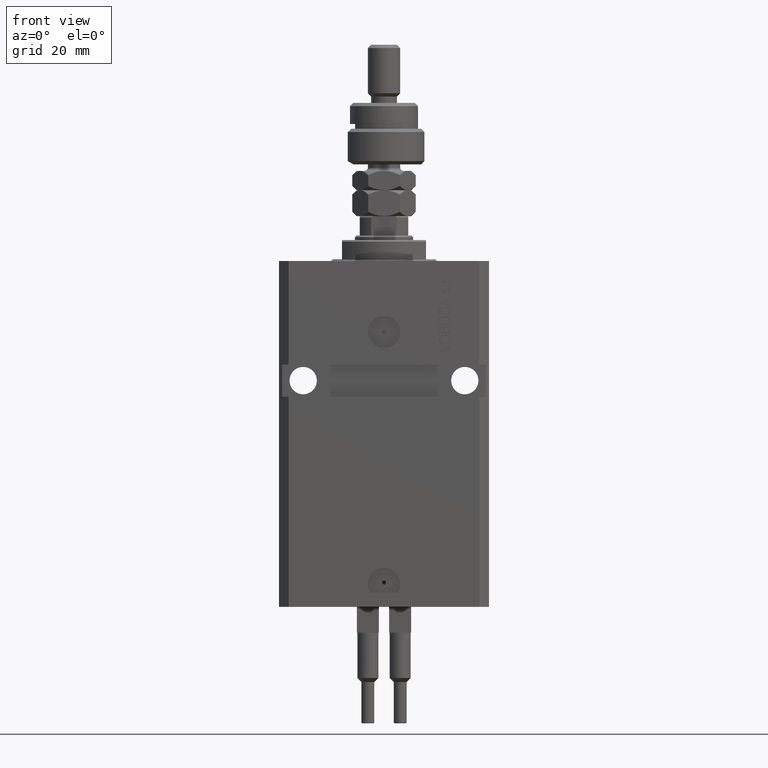
[diagram: clean part render]
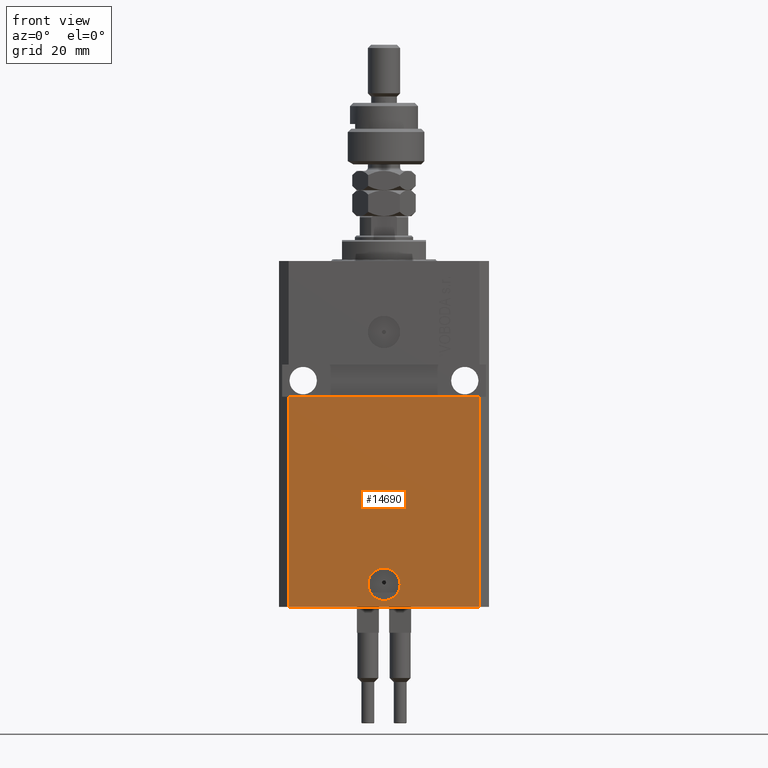
[diagram: same view with one face highlighted and labeled with its STEP entity id]
A machine part, front view. The second image highlights one B-rep face of the part: STEP entity #14690.
In plain terms, the highlighted planar face has unit normal (0, -1, 0).
Its self-contained STEP definition (entity closure, byte-faithful):
#1078 = CARTESIAN_POINT ( 'NONE',  ( -29.49999999999650413, -22.49999999999949907, -107.0000000000000000 ) ) ;
#3313 = DIRECTION ( 'NONE',  ( 0.000000000000000000, 0.000000000000000000, 1.000000000000000000 ) ) ;
#3344 = DIRECTION ( 'NONE',  ( 1.000000000000000000, 0.000000000000000000, 0.000000000000000000 ) ) ;
#4677 = CARTESIAN_POINT ( 'NONE',  ( -29.49999999999650413, -22.49999999999949907, -107.0000000000000000 ) ) ;
#4964 = PLANE ( 'NONE',  #43821 ) ;
#5320 = ORIENTED_EDGE ( 'NONE', *, *, #10480, .F. ) ;
#5917 = ORIENTED_EDGE ( 'NONE', *, *, #31678, .F. ) ;
#7284 = LINE ( 'NONE', #19218, #27377 ) ;
#8120 = VECTOR ( 'NONE', #22317, 1000.000000000000000 ) ;
#8846 = FACE_OUTER_BOUND ( 'NONE', #47612, .T. ) ;
#9853 = CARTESIAN_POINT ( 'NONE',  ( -5.000000000000003553, -22.49999999999949551, -99.99999999999998579 ) ) ;
#10107 = VERTEX_POINT ( 'NONE', #42074 ) ;
#10480 = EDGE_CURVE ( 'NONE', #26920, #31332, #22104, .T. ) ;
#10622 = CARTESIAN_POINT ( 'NONE',  ( -32.49999999999650413, -22.49999999999949907, -41.99999999999999289 ) ) ;
#11104 = DIRECTION ( 'NONE',  ( 1.176083712526788232E-16, -1.000000000000000000, 0.000000000000000000 ) ) ;
#13006 = DIRECTION ( 'NONE',  ( 1.000000000000000000, 1.176083712526788232E-16, 0.000000000000000000 ) ) ;
#14690 = ADVANCED_FACE ( 'NONE', ( #48561, #8846 ), #4964, .T. ) ;
#14826 = DIRECTION ( 'NONE',  ( 0.000000000000000000, 0.000000000000000000, 1.000000000000000000 ) ) ;
#16624 = EDGE_CURVE ( 'NONE', #27693, #36439, #31144, .T. ) ;
#16910 = DIRECTION ( 'NONE',  ( 1.176083712526788232E-16, -1.000000000000000000, 0.000000000000000000 ) ) ;
#18808 = EDGE_LOOP ( 'NONE', ( #5320, #26985 ) ) ;
#19218 = CARTESIAN_POINT ( 'NONE',  ( 29.49999999999650413, -22.49999999999949196, -107.0000000000000000 ) ) ;
#19464 = EDGE_CURVE ( 'NONE', #31332, #26920, #31445, .T. ) ;
#20651 = AXIS2_PLACEMENT_3D ( 'NONE', #49984, #38066, #26108 ) ;
#21218 = EDGE_CURVE ( 'NONE', #10107, #36439, #7284, .T. ) ;
#22104 = CIRCLE ( 'NONE', #46152, 5.000000000000006217 ) ;
#22317 = DIRECTION ( 'NONE',  ( 1.000000000000000000, 1.067522139062765303E-16, 1.067522139062765303E-16 ) ) ;
#22508 = CARTESIAN_POINT ( 'NONE',  ( -29.49999999999650413, -22.49999999999949907, -107.0000000000000000 ) ) ;
#23316 = VECTOR ( 'NONE', #3313, 1000.000000000000000 ) ;
#25523 = ORIENTED_EDGE ( 'NONE', *, *, #16624, .F. ) ;
#25868 = CARTESIAN_POINT ( 'NONE',  ( -29.49999999999650413, -22.49999999999949907, -41.99999999999999289 ) ) ;
#26108 = DIRECTION ( 'NONE',  ( 1.000000000000000000, 0.000000000000000000, 0.000000000000000000 ) ) ;
#26351 = VERTEX_POINT ( 'NONE', #4677 ) ;
#26920 = VERTEX_POINT ( 'NONE', #45005 ) ;
#26985 = ORIENTED_EDGE ( 'NONE', *, *, #19464, .F. ) ;
#27377 = VECTOR ( 'NONE', #14826, 1000.000000000000000 ) ;
#27693 = VERTEX_POINT ( 'NONE', #25868 ) ;
#28147 = ORIENTED_EDGE ( 'NONE', *, *, #44075, .T. ) ;
#31144 = LINE ( 'NONE', #10622, #8120 ) ;
#31332 = VERTEX_POINT ( 'NONE', #9853 ) ;
#31445 = CIRCLE ( 'NONE', #20651, 5.000000000000006217 ) ;
#31678 = EDGE_CURVE ( 'NONE', #26351, #27693, #34985, .T. ) ;
#34985 = LINE ( 'NONE', #22508, #23316 ) ;
#35040 = CARTESIAN_POINT ( 'NONE',  ( 29.49999999999650058, -22.49999999999949196, -41.99999999999998579 ) ) ;
#36439 = VERTEX_POINT ( 'NONE', #35040 ) ;
#38066 = DIRECTION ( 'NONE',  ( 1.176083712526788232E-16, -1.000000000000000000, 0.000000000000000000 ) ) ;
#41608 = DIRECTION ( 'NONE',  ( 1.000000000000000000, 1.176083712526788232E-16, 0.000000000000000000 ) ) ;
#42074 = CARTESIAN_POINT ( 'NONE',  ( 29.49999999999650413, -22.49999999999949196, -107.0000000000000000 ) ) ;
#43821 = AXIS2_PLACEMENT_3D ( 'NONE', #1078, #16910, #13006 ) ;
#44075 = EDGE_CURVE ( 'NONE', #26351, #10107, #46266, .T. ) ;
#45005 = CARTESIAN_POINT ( 'NONE',  ( 5.000000000000008882, -22.49999999999949551, -99.99999999999998579 ) ) ;
#46152 = AXIS2_PLACEMENT_3D ( 'NONE', #50579, #11104, #3344 ) ;
#46266 = LINE ( 'NONE', #46525, #47697 ) ;
#46398 = ORIENTED_EDGE ( 'NONE', *, *, #21218, .T. ) ;
#46525 = CARTESIAN_POINT ( 'NONE',  ( -29.49999999999650413, -22.49999999999949907, -107.0000000000000000 ) ) ;
#47612 = EDGE_LOOP ( 'NONE', ( #25523, #5917, #28147, #46398 ) ) ;
#47697 = VECTOR ( 'NONE', #41608, 1000.000000000000000 ) ;
#48561 = FACE_BOUND ( 'NONE', #18808, .T. ) ;
#49984 = CARTESIAN_POINT ( 'NONE',  ( 2.646188353185214061E-15, -22.49999999999949551, -99.99999999999998579 ) ) ;
#50579 = CARTESIAN_POINT ( 'NONE',  ( 2.646188353185214061E-15, -22.49999999999949551, -99.99999999999998579 ) ) ;